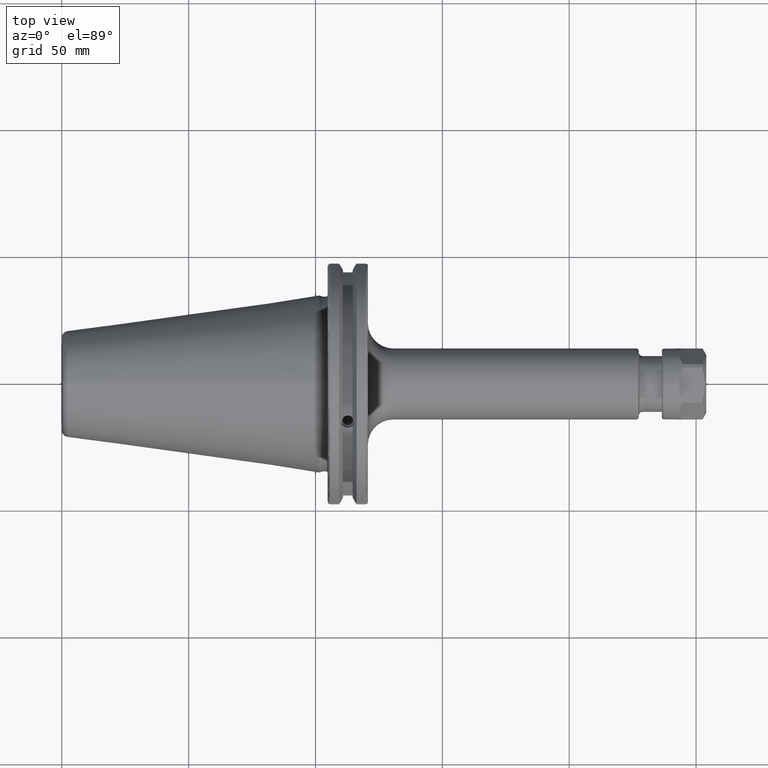
[diagram: clean part render]
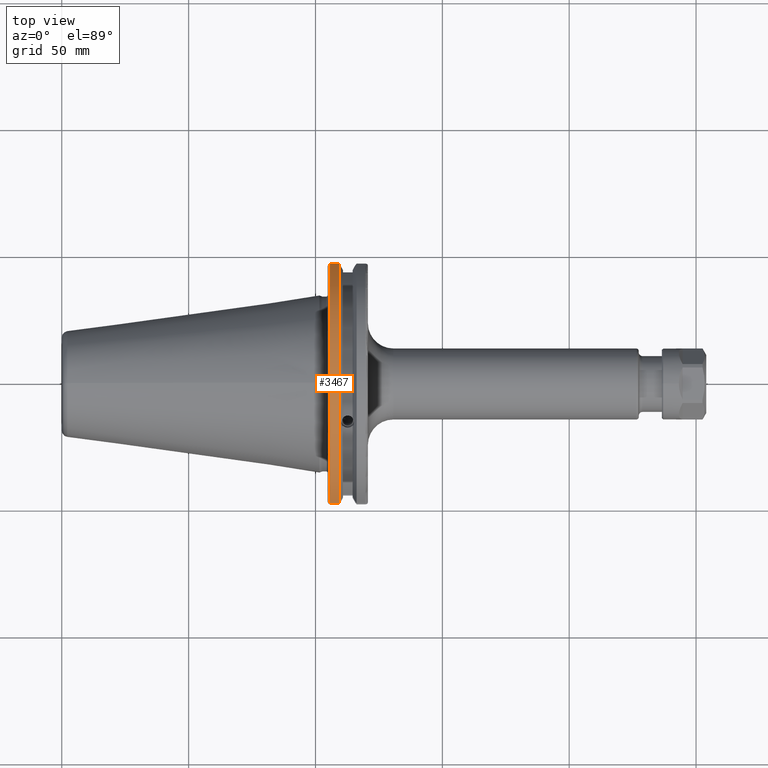
[diagram: same view with one face highlighted and labeled with its STEP entity id]
A machine part, top view. The second image highlights one B-rep face of the part: STEP entity #3467.
In plain terms, the highlighted cylindrical surface (partial cylindrical patch) has radius 49.1998 mm, axis along (1, 0, 0).
Its self-contained STEP definition (entity closure, byte-faithful):
#387=CARTESIAN_POINT('',(3.015974234408E-1,0.E0,0.E0));
#388=DIRECTION('',(-1.E0,0.E0,0.E0));
#389=DIRECTION('',(0.E0,-9.594067742993E-1,2.820259587849E-1));
#390=AXIS2_PLACEMENT_3D('',#387,#388,#389);
#962=DIRECTION('',(-1.E0,0.E0,0.E0));
#963=VECTOR('',#962,1.375974234408E-1);
#964=CARTESIAN_POINT('',(3.015974234408E-1,1.858370921818E0,5.462842821664E-1));
#965=LINE('',#964,#963);
#966=DIRECTION('',(1.E0,0.E0,0.E0));
#967=VECTOR('',#966,1.375974234408E-1);
#968=CARTESIAN_POINT('',(1.64E-1,-1.858370921818E0,5.462842821664E-1));
#969=LINE('',#968,#967);
#1457=CARTESIAN_POINT('',(1.64E-1,0.E0,0.E0));
#1458=DIRECTION('',(1.E0,0.E0,0.E0));
#1459=DIRECTION('',(0.E0,9.594067742993E-1,2.820259587849E-1));
#1460=AXIS2_PLACEMENT_3D('',#1457,#1458,#1459);
#1583=CARTESIAN_POINT('',(3.015974234408E-1,1.858370921818E0,
5.462842821664E-1));
#1626=CARTESIAN_POINT('',(3.015974234408E-1,-1.858370921818E0,
5.462842821664E-1));
#1928=CARTESIAN_POINT('',(1.64E-1,1.858370921818E0,5.462842821664E-1));
#1929=CARTESIAN_POINT('',(1.64E-1,-1.858370921818E0,5.462842821664E-1));
#1930=VERTEX_POINT('',#1928);
#1931=VERTEX_POINT('',#1929);
#2213=VERTEX_POINT('',#1583);
#2215=VERTEX_POINT('',#1626);
#3453=CARTESIAN_POINT('',(0.E0,0.E0,0.E0));
#3454=DIRECTION('',(1.E0,0.E0,0.E0));
#3455=DIRECTION('',(0.E0,0.E0,1.E0));
#3456=AXIS2_PLACEMENT_3D('',#3453,#3454,#3455);
#3457=CYLINDRICAL_SURFACE('',#3456,1.937E0);
#3459=ORIENTED_EDGE('',*,*,#3458,.F.);
#3461=ORIENTED_EDGE('',*,*,#3460,.F.);
#3462=ORIENTED_EDGE('',*,*,#2787,.F.);
#3464=ORIENTED_EDGE('',*,*,#3463,.F.);
#3465=EDGE_LOOP('',(#3459,#3461,#3462,#3464));
#3466=FACE_OUTER_BOUND('',#3465,.F.);
#3467=ADVANCED_FACE('',(#3466),#3457,.T.);
#391=CIRCLE('',#390,1.937E0);
#1461=CIRCLE('',#1460,1.937E0);
#2787=EDGE_CURVE('',#2215,#2213,#391,.T.);
#3458=EDGE_CURVE('',#1930,#1931,#1461,.T.);
#3460=EDGE_CURVE('',#2213,#1930,#965,.T.);
#3463=EDGE_CURVE('',#1931,#2215,#969,.T.);